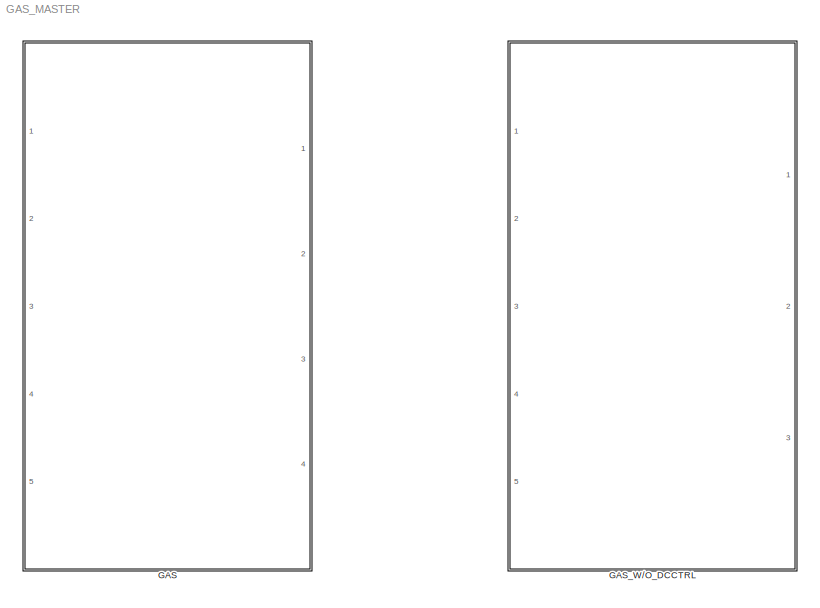
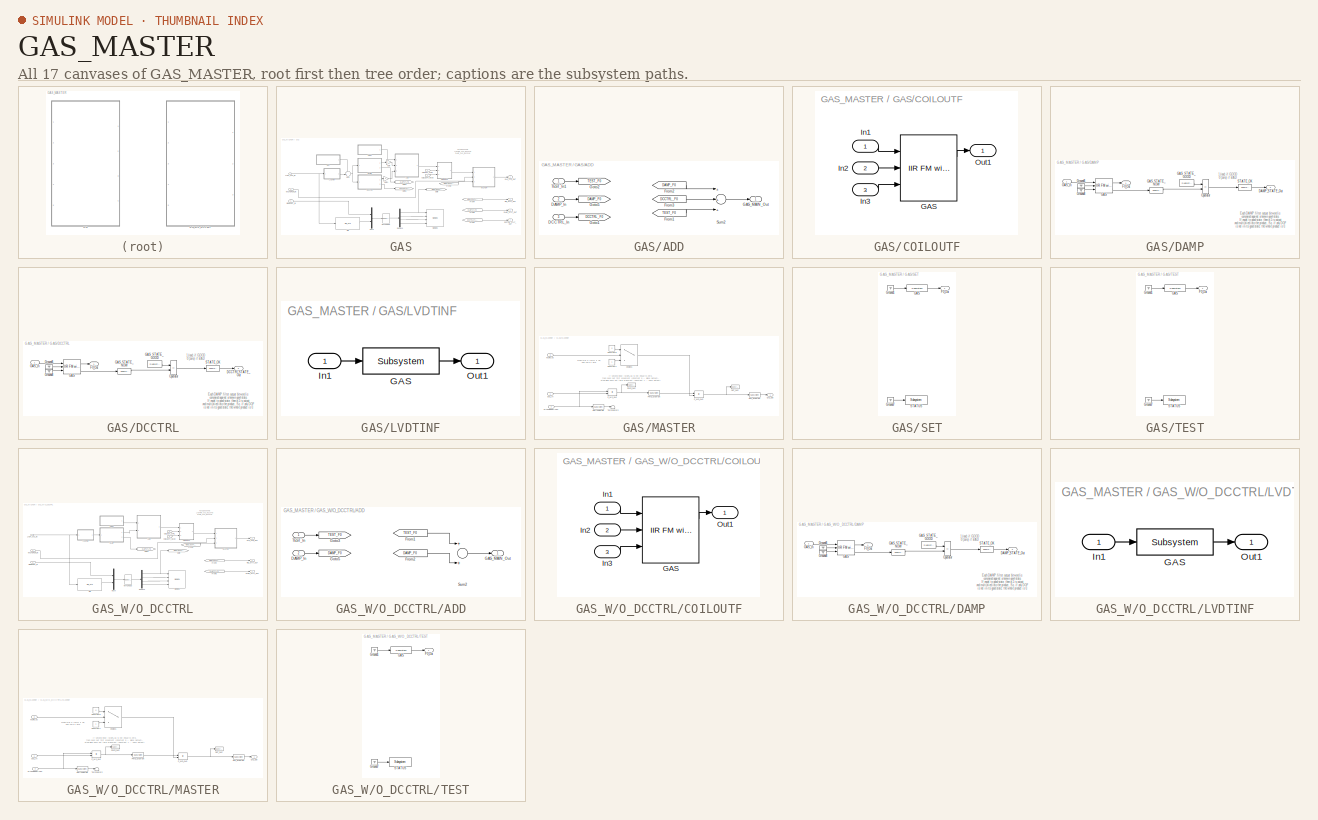
[diagram: thumbnail index - all 17 canvases of the model, root first then tree order]
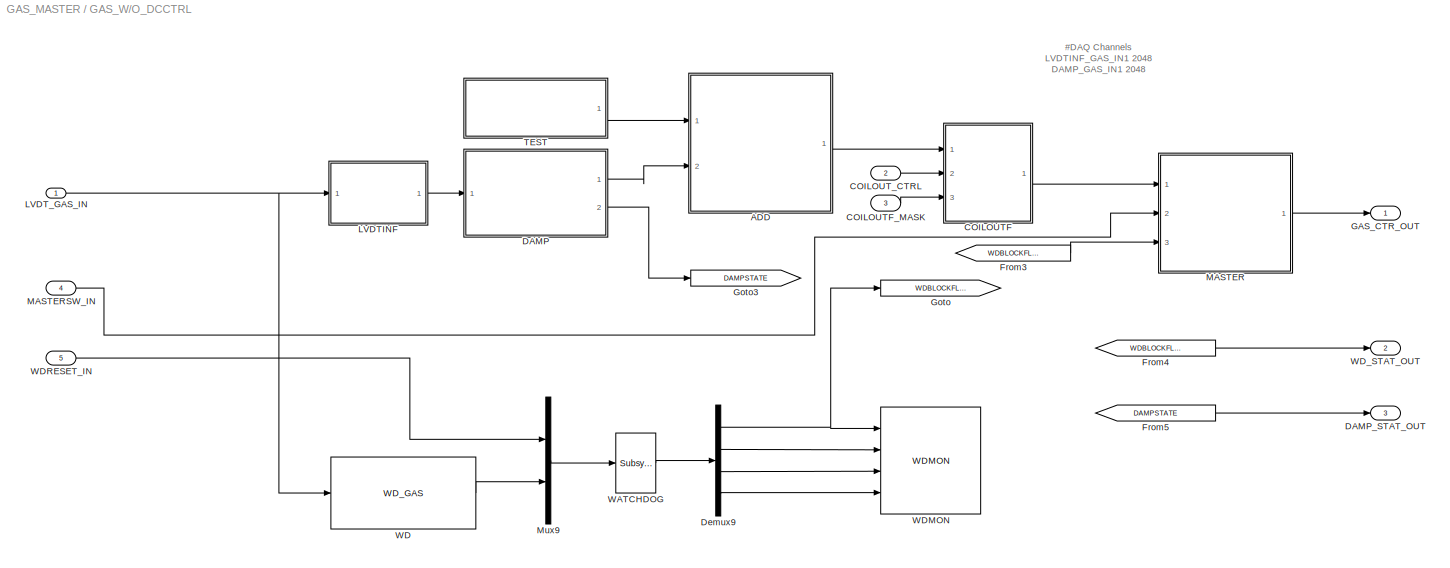
MODEL GAS_MASTER
KIND library
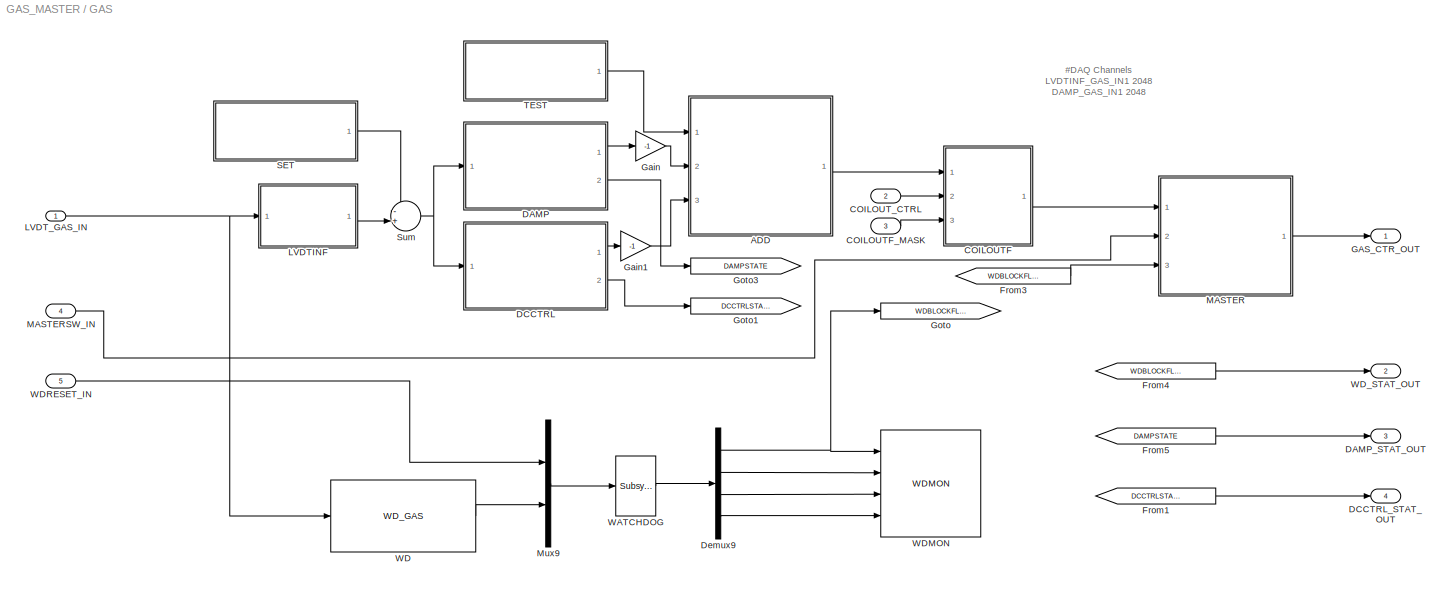
BLOCK [SubSystem] GAS
  Ports = [5, 4]
  RequestExecContextInheritance = off
  SID = 145
  Variant = off
BLOCK [SubSystem] GAS/ADD
  Ports = [3, 1]
  RequestExecContextInheritance = off
  SID = 42
  Variant = off
BLOCK [Inport] GAS/ADD/DAMP_In
  IconDisplay = Port number
  Port = 2
  SID = 45
BLOCK [Inport] GAS/ADD/DCCTRL_In
  IconDisplay = Port number
  Port = 3
  SID = 159
BLOCK [From] GAS/ADD/From1
  CloseFcn = tagdialog Close
  GotoTag = TEST_F0
  SID = 185
BLOCK [From] GAS/ADD/From2
  CloseFcn = tagdialog Close
  GotoTag = DAMP_F0
  SID = 47
BLOCK [From] GAS/ADD/From3
  CloseFcn = tagdialog Close
  GotoTag = DCCTRL_F0
  SID = 160
BLOCK [Outport] GAS/ADD/GAS_MAIN_Out
  IconDisplay = Port number
  SID = 51
BLOCK [Goto] GAS/ADD/Goto1
  GotoTag = DCCTRL_F0
  SID = 161
BLOCK [Goto] GAS/ADD/Goto2
  GotoTag = TEST_F0
  SID = 184
BLOCK [Goto] GAS/ADD/Goto5
  GotoTag = DAMP_F0
  SID = 49
BLOCK [Sum] GAS/ADD/Sum2
  InputSameDT = off
  Inputs = +++
  OutDataTypeStr = Inherit: Inherit via internal rule
  Ports = [3, 1]
  SID = 50
  SaturateOnIntegerOverflow = off
BLOCK [Inport] GAS/ADD/TEST_In1
  IconDisplay = Port number
  SID = 183
BLOCK [SubSystem] GAS/COILOUTF
  Ports = [3, 1]
  RequestExecContextInheritance = off
  SID = 64
  Variant = off
BLOCK [Reference] GAS/COILOUTF/GAS  REF=cdsFiltCtrl/IIR FM with control
  AttributesFormatString = %<Tag>
  Description = cdsFiltCntrl is the standard IIR filter module (exactly the same as cdsFilt) but with added control data output 'Ctrl'. Filter module digital signal output appears on the first output, which is called 'Val'. 'Ctrl' output has a bit pattern encoding the state of filter's on/off switches (FM1 through FM10). The bit values are:\n                                                                        ...<+4621ch>  <repeated x5 — deduplicated; at blocks: GAS>
  Ports = [3, 2]
  SID = 63
  SourceBlock = cdsFiltCtrl/IIR FM with control
  SourceType = SubSystem
  Tag = cdsFiltCtrl
BLOCK [Inport] GAS/COILOUTF/In1
  IconDisplay = Port number
  SID = 65
BLOCK [Inport] GAS/COILOUTF/In2
  IconDisplay = Port number
  Port = 2
  SID = 66
BLOCK [Inport] GAS/COILOUTF/In3
  IconDisplay = Port number
  Port = 3
  SID = 67
BLOCK [Outport] GAS/COILOUTF/Out1
  IconDisplay = Port number
  SID = 68
BLOCK [Inport] GAS/COILOUTF_MASK
  IconDisplay = Port number
  Port = 3
  SID = 148
BLOCK [Inport] GAS/COILOUT_CTRL
  IconDisplay = Port number
  Port = 2
  SID = 147
BLOCK [SubSystem] GAS/DAMP
  Ports = [1, 2]
  RequestExecContextInheritance = off
  SID = 8
  Variant = off
BLOCK [Outport] GAS/DAMP/DAMP_STATE_Out
  IconDisplay = Port number
  Port = 2
  SID = 38
BLOCK [Outport] GAS/DAMP/F0_Out
  IconDisplay = Port number
  SID = 35
BLOCK [Reference] GAS/DAMP/GAS  REF=cdsFiltCtrl/IIR FM with control
  AttributesFormatString = %<Tag>
  Ports = [3, 2]
  SID = 16
  SourceBlock = cdsFiltCtrl/IIR FM with control
  SourceType = SubSystem
  Tag = cdsFiltCtrl
BLOCK [Inport] GAS/DAMP/GAS_In
  IconDisplay = Port number
  SID = 9
BLOCK [Reference] GAS/DAMP/GAS_STATE_GOOD  REF=cdsEpicsIn/Subsystem
  AttributesFormatString = %<Tag>
  Description = Purpose:                                                                              \nCreate an EPICS input channel connection to the FE realtime controls.                 \n                                                                                      \nOperation:                                                                            \nOutputs value from an EPICS ai record. Value is ...<+266ch>  <repeated x3 — deduplicated; at blocks: GAS_STATE_GOOD>
  Ports = [0, 1]
  SID = 17
  SourceBlock = cdsEpicsIn/Subsystem
  SourceType = SubSystem
  Tag = cdsEpicsIn
BLOCK [Reference] GAS/DAMP/GAS_STATE_NOW  REF=cdsEpicsOut/Subsystem
  AttributesFormatString = %<Tag>
  Description = Purpose:                                          \nOutput a FE signal to an EPICS channel.           \n                                                  \nOperation:                                        \nTakes input value and passes it to EPICS record.  \n                                                  \nUsage:                                            \nName the part with the desired EPICS...<+14ch>  <repeated x12 — deduplicated; at blocks: GAS_STATE_NOW, STATE_OK, OUT_GASMON, PWD_GASMON, SWITCHMON>
  Ports = [1, 1]
  SID = 18
  SourceBlock = cdsEpicsOut/Subsystem
  SourceType = SubSystem
  Tag = cdsEpicsOutput
BLOCK [Ground] GAS/DAMP/Ground6
  SID = 28
BLOCK [Ground] GAS/DAMP/Ground8
  SID = 29
BLOCK [RelationalOperator] GAS/DAMP/Operator
  InputSameDT = off
  Operator = ==
  OutDataTypeStr = boolean
  Ports = [2, 1]
  SID = 30
BLOCK [Reference] GAS/DAMP/STATE_OK  REF=cdsEpicsOut/Subsystem
  AttributesFormatString = %<Tag>
  Ports = [1, 1]
  SID = 34
  SourceBlock = cdsEpicsOut/Subsystem
  SourceType = SubSystem
  Tag = cdsEpicsOutput
BLOCK [Outport] GAS/DAMP_STAT_OUT
  IconDisplay = Port number
  Port = 3
  SID = 153
BLOCK [SubSystem] GAS/DCCTRL
  Ports = [1, 2]
  RequestExecContextInheritance = off
  SID = 163
  Variant = off
BLOCK [Outport] GAS/DCCTRL/DCCTRL_STATE_Out
  IconDisplay = Port number
  Port = 2
  SID = 173
BLOCK [Outport] GAS/DCCTRL/F0_Out
  IconDisplay = Port number
  SID = 172
BLOCK [Reference] GAS/DCCTRL/GAS  REF=cdsFiltCtrl/IIR FM with control
  AttributesFormatString = %<Tag>
  Ports = [3, 2]
  SID = 165
  SourceBlock = cdsFiltCtrl/IIR FM with control
  SourceType = SubSystem
  Tag = cdsFiltCtrl
BLOCK [Inport] GAS/DCCTRL/GAS_In
  IconDisplay = Port number
  SID = 164
BLOCK [Reference] GAS/DCCTRL/GAS_STATE_GOOD  REF=cdsEpicsIn/Subsystem
  AttributesFormatString = %<Tag>
  Ports = [0, 1]
  SID = 166
  SourceBlock = cdsEpicsIn/Subsystem
  SourceType = SubSystem
  Tag = cdsEpicsIn
BLOCK [Reference] GAS/DCCTRL/GAS_STATE_NOW  REF=cdsEpicsOut/Subsystem
  AttributesFormatString = %<Tag>
  Ports = [1, 1]
  SID = 167
  SourceBlock = cdsEpicsOut/Subsystem
  SourceType = SubSystem
  Tag = cdsEpicsOutput
BLOCK [Ground] GAS/DCCTRL/Ground6
  SID = 168
BLOCK [Ground] GAS/DCCTRL/Ground8
  SID = 169
BLOCK [RelationalOperator] GAS/DCCTRL/Operator
  InputSameDT = off
  Operator = ==
  OutDataTypeStr = boolean
  Ports = [2, 1]
  SID = 170
BLOCK [Reference] GAS/DCCTRL/STATE_OK  REF=cdsEpicsOut/Subsystem
  AttributesFormatString = %<Tag>
  Ports = [1, 1]
  SID = 171
  SourceBlock = cdsEpicsOut/Subsystem
  SourceType = SubSystem
  Tag = cdsEpicsOutput
BLOCK [Outport] GAS/DCCTRL_STAT_OUT
  IconDisplay = Port number
  Port = 4
  SID = 178
BLOCK [Demux] GAS/Demux9
  DisplayOption = bar
  Ports = [1, 4]
  SID = 108
BLOCK [From] GAS/From1
  CloseFcn = tagdialog Close
  GotoTag = DCCTRLSTATE
  SID = 177
BLOCK [From] GAS/From3
  CloseFcn = tagdialog Close
  GotoTag = WDBLOCKFLAG
  SID = 109
BLOCK [From] GAS/From4
  CloseFcn = tagdialog Close
  GotoTag = WDBLOCKFLAG
  SID = 118
BLOCK [From] GAS/From5
  CloseFcn = tagdialog Close
  GotoTag = DAMPSTATE
  SID = 119
BLOCK [Outport] GAS/GAS_CTR_OUT
  IconDisplay = Port number
  SID = 151
BLOCK [Gain] GAS/Gain
  Gain = -1
  OutDataTypeStr = Inherit: Inherit via internal rule
  ParamDataTypeStr = Inherit: Inherit via internal rule
  SID = 273
  SaturateOnIntegerOverflow = off
BLOCK [Gain] GAS/Gain1
  Gain = -1
  OutDataTypeStr = Inherit: Inherit via internal rule
  ParamDataTypeStr = Inherit: Inherit via internal rule
  SID = 274
  SaturateOnIntegerOverflow = off
BLOCK [Goto] GAS/Goto
  GotoTag = WDBLOCKFLAG
  SID = 110
BLOCK [Goto] GAS/Goto1
  GotoTag = DCCTRLSTATE
  SID = 176
BLOCK [Goto] GAS/Goto3
  GotoTag = DAMPSTATE
  SID = 122
BLOCK [SubSystem] GAS/LVDTINF
  Ports = [1, 1]
  RequestExecContextInheritance = off
  SID = 4
  Variant = off
BLOCK [Reference] GAS/LVDTINF/GAS  REF=cdsFilt/Subsystem
  AttributesFormatString = %<Tag>
  Description = Purpose:                                                                                                                                                                                                                                  \nStandard CDS IIR filter module.                                                                                                                                     ...<+1302ch>  <repeated x5 — deduplicated; at blocks: GAS>
  Ports = [1, 1]
  SID = 3
  SourceBlock = cdsFilt/Subsystem
  SourceType = SubSystem
  Tag = cdsFilt
BLOCK [Inport] GAS/LVDTINF/In1
  IconDisplay = Port number
  SID = 5
BLOCK [Outport] GAS/LVDTINF/Out1
  IconDisplay = Port number
  SID = 6
BLOCK [Inport] GAS/LVDT_GAS_IN
  IconDisplay = Port number
  SID = 146
BLOCK [SubSystem] GAS/MASTER
  Ports = [3, 1]
  RequestExecContextInheritance = off
  SID = 71
  Variant = off
BLOCK [Switch] GAS/MASTER/Choice1
  Criteria = u2 ~= 0
  InputSameDT = off
  SID = 77
  SaturateOnIntegerOverflow = off
  Threshold = 0.5
BLOCK [Constant] GAS/MASTER/Constant0
  SID = 78
  Value = 0
BLOCK [Constant] GAS/MASTER/Constant1
  SID = 79
BLOCK [Inport] GAS/MASTER/GAS_In
  IconDisplay = Port number
  SID = 72
BLOCK [Outport] GAS/MASTER/GAS_Out
  IconDisplay = Port number
  SID = 100
BLOCK [Inport] GAS/MASTER/MASTERSWITCH
  IconDisplay = Port number
  Port = 2
  SID = 75
BLOCK [Reference] GAS/MASTER/OUT_GAS  REF=cdsTP/Subsystem
  AttributesFormatString = %<Tag>
  Ports = [1]
  SID = 82
  SourceBlock = cdsTP/Subsystem
  SourceType = SubSystem
  Tag = Test Point
BLOCK [Reference] GAS/MASTER/OUT_GASMON  REF=cdsEpicsOut/Subsystem
  AttributesFormatString = %<Tag>
  Ports = [1, 1]
  SID = 83
  SourceBlock = cdsEpicsOut/Subsystem
  SourceType = SubSystem
  Tag = cdsEpicsOutput
BLOCK [Reference] GAS/MASTER/PWD_GAS  REF=cdsTP/Subsystem
  AttributesFormatString = %<Tag>
  Ports = [1]
  SID = 88
  SourceBlock = cdsTP/Subsystem
  SourceType = SubSystem
  Tag = Test Point
BLOCK [Reference] GAS/MASTER/PWD_GASMON  REF=cdsEpicsOut/Subsystem
  AttributesFormatString = %<Tag>
  Ports = [1, 1]
  SID = 89
  SourceBlock = cdsEpicsOut/Subsystem
  SourceType = SubSystem
  Tag = cdsEpicsOutput
BLOCK [Product] GAS/MASTER/P_MS_GAS
  InputSameDT = off
  OutDataTypeStr = Inherit: Inherit via internal rule
  Ports = [2, 1]
  SID = 93
  SaturateOnIntegerOverflow = off
BLOCK [Product] GAS/MASTER/P_WD_GAS
  InputSameDT = off
  OutDataTypeStr = Inherit: Inherit via internal rule
  Ports = [2, 1]
  SID = 96
  SaturateOnIntegerOverflow = off
BLOCK [Reference] GAS/MASTER/SWITCHMON  REF=cdsEpicsOut/Subsystem
  AttributesFormatString = %<Tag>
  Ports = [1, 1]
  SID = 98
  SourceBlock = cdsEpicsOut/Subsystem
  SourceType = SubSystem
  Tag = cdsEpicsOutput
BLOCK [Terminator] GAS/MASTER/Terminator2
  SID = 99
BLOCK [Inport] GAS/MASTER/WDFLAG
  IconDisplay = Port number
  Port = 3
  SID = 76
BLOCK [Inport] GAS/MASTERSW_IN
  IconDisplay = Port number
  Port = 4
  SID = 149
BLOCK [Mux] GAS/Mux9
  DisplayOption = bar
  Inputs = 2
  Ports = [2, 1]
  SID = 107
BLOCK [SubSystem] GAS/SET
  Ports = [0, 1]
  RequestExecContextInheritance = off
  SID = 43
  Variant = off
BLOCK [Outport] GAS/SET/F0_Out
  IconDisplay = Port number
  SID = 60
BLOCK [Reference] GAS/SET/GAS  REF=cdsFilt/Subsystem
  AttributesFormatString = %<Tag>
  Ports = [1, 1]
  SID = 53
  SourceBlock = cdsFilt/Subsystem
  SourceType = SubSystem
  Tag = cdsFilt
BLOCK [Ground] GAS/SET/Ground1
  SID = 55
BLOCK [Ground] GAS/SET/Ground7
  SID = 58
BLOCK [Reference] GAS/SET/STATUS  REF=cdsEpicsBinIn/Subsystem
  AttributesFormatString = %<Tag>
  Description = Purpose:                                                                            \nCreate an EPICS binary (0 or 1) input channel to the FE realtime controls.          \n                                                                                    \nOperation:                                                                          \nOutputs value from an EPICS ai record. Value is binary i...<+252ch>  <repeated x3 — deduplicated; at blocks: STATUS>
  Ports = [1, 1]
  SID = 59
  SourceBlock = cdsEpicsBinIn/Subsystem
  SourceType = SubSystem
  Tag = cdsEpicsBinIn
BLOCK [Sum] GAS/Sum
  IconShape = round
  InputSameDT = off
  Inputs = -+|
  OutDataTypeStr = Inherit: Inherit via internal rule
  Ports = [2, 1]
  SID = 181
  SaturateOnIntegerOverflow = off
BLOCK [SubSystem] GAS/TEST
  Ports = [0, 1]
  RequestExecContextInheritance = off
  SID = 186
  Variant = off
BLOCK [Outport] GAS/TEST/F0_Out
  IconDisplay = Port number
  SID = 191
BLOCK [Reference] GAS/TEST/GAS  REF=cdsFilt/Subsystem
  AttributesFormatString = %<Tag>
  Ports = [1, 1]
  SID = 187
  SourceBlock = cdsFilt/Subsystem
  SourceType = SubSystem
  Tag = cdsFilt
BLOCK [Ground] GAS/TEST/Ground1
  SID = 188
BLOCK [Ground] GAS/TEST/Ground7
  SID = 189
BLOCK [Reference] GAS/TEST/STATUS  REF=cdsEpicsBinIn/Subsystem
  AttributesFormatString = %<Tag>
  Ports = [1, 1]
  SID = 190
  SourceBlock = cdsEpicsBinIn/Subsystem
  SourceType = SubSystem
  Tag = cdsEpicsBinIn
BLOCK [Reference] GAS/WATCHDOG  REF=cdsFunctionCall/Subsystem
  AttributesFormatString = %<Tag>\\n%<Description>
  Description = inline OSEMWATCHDOG <path>
  Ports = [1, 1]
  SID = 111
  SourceBlock = cdsFunctionCall/Subsystem
  SourceType = SubSystem
  Tag = cdsFunctionCall
BLOCK [Reference] GAS/WD  REF=VIS_LIB/WD_GAS
  Ports = [1, 1]
  SID = 156
  SourceBlock = VIS_LIB/WD_GAS
  SourceType = SubSystem
BLOCK [Reference] GAS/WDMON  REF=VIS_LIB/WDMON
  Ports = [4]
  SID = 112
  SourceBlock = VIS_LIB/WDMON
  SourceType = SubSystem
BLOCK [Inport] GAS/WDRESET_IN
  IconDisplay = Port number
  Port = 5
  SID = 150
BLOCK [Outport] GAS/WD_STAT_OUT
  IconDisplay = Port number
  Port = 2
  SID = 152
BLOCK [SubSystem] GAS_W//O_DCCTRL
  Ports = [5, 3]
  RequestExecContextInheritance = off
  SID = 193
  Variant = off
BLOCK [SubSystem] GAS_W//O_DCCTRL/ADD
  Ports = [2, 1]
  RequestExecContextInheritance = off
  SID = 199
  Variant = off
BLOCK [Inport] GAS_W//O_DCCTRL/ADD/DAMP_In
  IconDisplay = Port number
  Port = 2
  SID = 201
BLOCK [From] GAS_W//O_DCCTRL/ADD/From1
  CloseFcn = tagdialog Close
  GotoTag = TEST_F0
  SID = 203
BLOCK [From] GAS_W//O_DCCTRL/ADD/From2
  CloseFcn = tagdialog Close
  GotoTag = DAMP_F0
  SID = 204
BLOCK [Outport] GAS_W//O_DCCTRL/ADD/GAS_MAIN_Out
  IconDisplay = Port number
  SID = 210
BLOCK [Goto] GAS_W//O_DCCTRL/ADD/Goto3
  GotoTag = TEST_F0
  SID = 207
BLOCK [Goto] GAS_W//O_DCCTRL/ADD/Goto5
  GotoTag = DAMP_F0
  SID = 208
BLOCK [Sum] GAS_W//O_DCCTRL/ADD/Sum2
  InputSameDT = off
  OutDataTypeStr = Inherit: Inherit via internal rule
  Ports = [2, 1]
  SID = 209
  SaturateOnIntegerOverflow = off
BLOCK [Inport] GAS_W//O_DCCTRL/ADD/TEST_In
  IconDisplay = Port number
  SID = 200
BLOCK [SubSystem] GAS_W//O_DCCTRL/COILOUTF
  Ports = [3, 1]
  RequestExecContextInheritance = off
  SID = 212
  Variant = off
BLOCK [Reference] GAS_W//O_DCCTRL/COILOUTF/GAS  REF=cdsFiltCtrl/IIR FM with control
  AttributesFormatString = %<Tag>
  Ports = [3, 2]
  SID = 216
  SourceBlock = cdsFiltCtrl/IIR FM with control
  SourceType = SubSystem
  Tag = cdsFiltCtrl
BLOCK [Inport] GAS_W//O_DCCTRL/COILOUTF/In1
  IconDisplay = Port number
  SID = 213
BLOCK [Inport] GAS_W//O_DCCTRL/COILOUTF/In2
  IconDisplay = Port number
  Port = 2
  SID = 214
BLOCK [Inport] GAS_W//O_DCCTRL/COILOUTF/In3
  IconDisplay = Port number
  Port = 3
  SID = 215
BLOCK [Outport] GAS_W//O_DCCTRL/COILOUTF/Out1
  IconDisplay = Port number
  SID = 217
BLOCK [Inport] GAS_W//O_DCCTRL/COILOUTF_MASK
  IconDisplay = Port number
  Port = 3
  SID = 196
BLOCK [Inport] GAS_W//O_DCCTRL/COILOUT_CTRL
  IconDisplay = Port number
  Port = 2
  SID = 195
BLOCK [SubSystem] GAS_W//O_DCCTRL/DAMP
  Ports = [1, 2]
  RequestExecContextInheritance = off
  SID = 218
  Variant = off
BLOCK [Outport] GAS_W//O_DCCTRL/DAMP/DAMP_STATE_Out
  IconDisplay = Port number
  Port = 2
  SID = 228
BLOCK [Outport] GAS_W//O_DCCTRL/DAMP/F0_Out
  IconDisplay = Port number
  SID = 227
BLOCK [Reference] GAS_W//O_DCCTRL/DAMP/GAS  REF=cdsFiltCtrl/IIR FM with control
  AttributesFormatString = %<Tag>
  Ports = [3, 2]
  SID = 220
  SourceBlock = cdsFiltCtrl/IIR FM with control
  SourceType = SubSystem
  Tag = cdsFiltCtrl
BLOCK [Inport] GAS_W//O_DCCTRL/DAMP/GAS_In
  IconDisplay = Port number
  SID = 219
BLOCK [Reference] GAS_W//O_DCCTRL/DAMP/GAS_STATE_GOOD  REF=cdsEpicsIn/Subsystem
  AttributesFormatString = %<Tag>
  Ports = [0, 1]
  SID = 221
  SourceBlock = cdsEpicsIn/Subsystem
  SourceType = SubSystem
  Tag = cdsEpicsIn
BLOCK [Reference] GAS_W//O_DCCTRL/DAMP/GAS_STATE_NOW  REF=cdsEpicsOut/Subsystem
  AttributesFormatString = %<Tag>
  Ports = [1, 1]
  SID = 222
  SourceBlock = cdsEpicsOut/Subsystem
  SourceType = SubSystem
  Tag = cdsEpicsOutput
BLOCK [Ground] GAS_W//O_DCCTRL/DAMP/Ground6
  SID = 223
BLOCK [Ground] GAS_W//O_DCCTRL/DAMP/Ground8
  SID = 224
BLOCK [RelationalOperator] GAS_W//O_DCCTRL/DAMP/Operator
  InputSameDT = off
  Operator = ==
  OutDataTypeStr = boolean
  Ports = [2, 1]
  SID = 225
BLOCK [Reference] GAS_W//O_DCCTRL/DAMP/STATE_OK  REF=cdsEpicsOut/Subsystem
  AttributesFormatString = %<Tag>
  Ports = [1, 1]
  SID = 226
  SourceBlock = cdsEpicsOut/Subsystem
  SourceType = SubSystem
  Tag = cdsEpicsOutput
BLOCK [Outport] GAS_W//O_DCCTRL/DAMP_STAT_OUT
  IconDisplay = Port number
  Port = 3
  SID = 271
BLOCK [Demux] GAS_W//O_DCCTRL/Demux9
  DisplayOption = bar
  Ports = [1, 4]
  SID = 231
BLOCK [From] GAS_W//O_DCCTRL/From3
  CloseFcn = tagdialog Close
  GotoTag = WDBLOCKFLAG
  SID = 232
BLOCK [From] GAS_W//O_DCCTRL/From4
  CloseFcn = tagdialog Close
  GotoTag = WDBLOCKFLAG
  SID = 233
BLOCK [From] GAS_W//O_DCCTRL/From5
  CloseFcn = tagdialog Close
  GotoTag = DAMPSTATE
  SID = 234
BLOCK [Outport] GAS_W//O_DCCTRL/GAS_CTR_OUT
  IconDisplay = Port number
  SID = 269
BLOCK [Goto] GAS_W//O_DCCTRL/Goto
  GotoTag = WDBLOCKFLAG
  SID = 235
BLOCK [Goto] GAS_W//O_DCCTRL/Goto3
  GotoTag = DAMPSTATE
  SID = 236
BLOCK [SubSystem] GAS_W//O_DCCTRL/LVDTINF
  Ports = [1, 1]
  RequestExecContextInheritance = off
  SID = 237
  Variant = off
BLOCK [Reference] GAS_W//O_DCCTRL/LVDTINF/GAS  REF=cdsFilt/Subsystem
  AttributesFormatString = %<Tag>
  Ports = [1, 1]
  SID = 239
  SourceBlock = cdsFilt/Subsystem
  SourceType = SubSystem
  Tag = cdsFilt
BLOCK [Inport] GAS_W//O_DCCTRL/LVDTINF/In1
  IconDisplay = Port number
  SID = 238
BLOCK [Outport] GAS_W//O_DCCTRL/LVDTINF/Out1
  IconDisplay = Port number
  SID = 240
BLOCK [Inport] GAS_W//O_DCCTRL/LVDT_GAS_IN
  IconDisplay = Port number
  SID = 194
BLOCK [SubSystem] GAS_W//O_DCCTRL/MASTER
  Ports = [3, 1]
  RequestExecContextInheritance = off
  SID = 241
  Variant = off
BLOCK [Switch] GAS_W//O_DCCTRL/MASTER/Choice1
  Criteria = u2 ~= 0
  InputSameDT = off
  SID = 245
  SaturateOnIntegerOverflow = off
  Threshold = 0.5
BLOCK [Constant] GAS_W//O_DCCTRL/MASTER/Constant0
  SID = 246
  Value = 0
BLOCK [Constant] GAS_W//O_DCCTRL/MASTER/Constant1
  SID = 247
BLOCK [Inport] GAS_W//O_DCCTRL/MASTER/GAS_In
  IconDisplay = Port number
  SID = 242
BLOCK [Outport] GAS_W//O_DCCTRL/MASTER/GAS_Out
  IconDisplay = Port number
  SID = 256
BLOCK [Inport] GAS_W//O_DCCTRL/MASTER/MASTERSWITCH
  IconDisplay = Port number
  Port = 2
  SID = 243
BLOCK [Reference] GAS_W//O_DCCTRL/MASTER/OUT_GAS  REF=cdsTP/Subsystem
  AttributesFormatString = %<Tag>
  Ports = [1]
  SID = 248
  SourceBlock = cdsTP/Subsystem
  SourceType = SubSystem
  Tag = Test Point
BLOCK [Reference] GAS_W//O_DCCTRL/MASTER/OUT_GASMON  REF=cdsEpicsOut/Subsystem
  AttributesFormatString = %<Tag>
  Ports = [1, 1]
  SID = 249
  SourceBlock = cdsEpicsOut/Subsystem
  SourceType = SubSystem
  Tag = cdsEpicsOutput
BLOCK [Reference] GAS_W//O_DCCTRL/MASTER/PWD_GAS  REF=cdsTP/Subsystem
  AttributesFormatString = %<Tag>
  Ports = [1]
  SID = 250
  SourceBlock = cdsTP/Subsystem
  SourceType = SubSystem
  Tag = Test Point
BLOCK [Reference] GAS_W//O_DCCTRL/MASTER/PWD_GASMON  REF=cdsEpicsOut/Subsystem
  AttributesFormatString = %<Tag>
  Ports = [1, 1]
  SID = 251
  SourceBlock = cdsEpicsOut/Subsystem
  SourceType = SubSystem
  Tag = cdsEpicsOutput
BLOCK [Product] GAS_W//O_DCCTRL/MASTER/P_MS_GAS
  InputSameDT = off
  OutDataTypeStr = Inherit: Inherit via internal rule
  Ports = [2, 1]
  SID = 252
  SaturateOnIntegerOverflow = off
BLOCK [Product] GAS_W//O_DCCTRL/MASTER/P_WD_GAS
  InputSameDT = off
  OutDataTypeStr = Inherit: Inherit via internal rule
  Ports = [2, 1]
  SID = 253
  SaturateOnIntegerOverflow = off
BLOCK [Reference] GAS_W//O_DCCTRL/MASTER/SWITCHMON  REF=cdsEpicsOut/Subsystem
  AttributesFormatString = %<Tag>
  Ports = [1, 1]
  SID = 254
  SourceBlock = cdsEpicsOut/Subsystem
  SourceType = SubSystem
  Tag = cdsEpicsOutput
BLOCK [Terminator] GAS_W//O_DCCTRL/MASTER/Terminator2
  SID = 255
BLOCK [Inport] GAS_W//O_DCCTRL/MASTER/WDFLAG
  IconDisplay = Port number
  Port = 3
  SID = 244
BLOCK [Inport] GAS_W//O_DCCTRL/MASTERSW_IN
  IconDisplay = Port number
  Port = 4
  SID = 197
BLOCK [Mux] GAS_W//O_DCCTRL/Mux9
  DisplayOption = bar
  Inputs = 2
  Ports = [2, 1]
  SID = 259
BLOCK [SubSystem] GAS_W//O_DCCTRL/TEST
  Ports = [0, 1]
  RequestExecContextInheritance = off
  SID = 260
  Variant = off
BLOCK [Outport] GAS_W//O_DCCTRL/TEST/F0_Out
  IconDisplay = Port number
  SID = 265
BLOCK [Reference] GAS_W//O_DCCTRL/TEST/GAS  REF=cdsFilt/Subsystem
  AttributesFormatString = %<Tag>
  Ports = [1, 1]
  SID = 261
  SourceBlock = cdsFilt/Subsystem
  SourceType = SubSystem
  Tag = cdsFilt
BLOCK [Ground] GAS_W//O_DCCTRL/TEST/Ground1
  SID = 262
BLOCK [Ground] GAS_W//O_DCCTRL/TEST/Ground7
  SID = 263
BLOCK [Reference] GAS_W//O_DCCTRL/TEST/STATUS  REF=cdsEpicsBinIn/Subsystem
  AttributesFormatString = %<Tag>
  Ports = [1, 1]
  SID = 264
  SourceBlock = cdsEpicsBinIn/Subsystem
  SourceType = SubSystem
  Tag = cdsEpicsBinIn
BLOCK [Reference] GAS_W//O_DCCTRL/WATCHDOG  REF=cdsFunctionCall/Subsystem
  AttributesFormatString = %<Tag>\\n%<Description>
  Description = inline OSEMWATCHDOG <path>
  Ports = [1, 1]
  SID = 266
  SourceBlock = cdsFunctionCall/Subsystem
  SourceType = SubSystem
  Tag = cdsFunctionCall
BLOCK [Reference] GAS_W//O_DCCTRL/WD  REF=VIS_LIB/WD_GAS
  Ports = [1, 1]
  SID = 267
  SourceBlock = VIS_LIB/WD_GAS
  SourceType = SubSystem
BLOCK [Reference] GAS_W//O_DCCTRL/WDMON  REF=VIS_LIB/WDMON
  Ports = [4]
  SID = 268
  SourceBlock = VIS_LIB/WDMON
  SourceType = SubSystem
BLOCK [Inport] GAS_W//O_DCCTRL/WDRESET_IN
  IconDisplay = Port number
  Port = 5
  SID = 198
BLOCK [Outport] GAS_W//O_DCCTRL/WD_STAT_OUT
  IconDisplay = Port number
  Port = 2
  SID = 270
ANNOTATION GAS: #DAQ Channels\nLVDTINF_GAS_IN1 2048\nDAMP_GAS_IN1 2048
ANNOTATION GAS/DAMP: 1 (one) if GOOD\n0 (zero) if BAD
ANNOTATION GAS/DAMP: Each DAMP filter output bitword is \ncompared against a known good state.\nIf equal to good state, then a 1 is output \nand multiplied into the product. So, if any DOF\nis not in its good state, the whole product is 0.
ANNOTATION GAS/DCCTRL: 1 (one) if GOOD\n0 (zero) if BAD
ANNOTATION GAS/DCCTRL: Each DAMP filter output bitword is \ncompared against a known good state.\nIf equal to good state, then a 1 is output \nand multiplied into the product. So, if any DOF\nis not in its good state, the whole product is 0.
ANNOTATION GAS/MASTER: If second input (WDFLAG) is not equal to zero, \nthen pass out first argument (Constant 0 -- Block Output), \notherwise pass out third argument (Constant 1 -- Pass Output)
ANNOTATION GAS/MASTER: WDFLAG is 0 (zero) if OK,\nNon-zero if BAD
ANNOTATION GAS_W//O_DCCTRL: #DAQ Channels\nLVDTINF_GAS_IN1 2048\nDAMP_GAS_IN1 2048
ANNOTATION GAS_W//O_DCCTRL/DAMP: 1 (one) if GOOD\n0 (zero) if BAD
ANNOTATION GAS_W//O_DCCTRL/DAMP: Each DAMP filter output bitword is \ncompared against a known good state.\nIf equal to good state, then a 1 is output \nand multiplied into the product. So, if any DOF\nis not in its good state, the whole product is 0.
ANNOTATION GAS_W//O_DCCTRL/MASTER: If second input (WDFLAG) is not equal to zero, \nthen pass out first argument (Constant 0 -- Block Output), \notherwise pass out third argument (Constant 1 -- Pass Output)
ANNOTATION GAS_W//O_DCCTRL/MASTER: WDFLAG is 0 (zero) if OK,\nNon-zero if BAD
LINE GAS/ADD/DAMP_In:1 -> GAS/ADD/Goto5:1
LINE GAS/ADD/DCCTRL_In:1 -> GAS/ADD/Goto1:1
LINE GAS/ADD/From1:1 -> GAS/ADD/Sum2:3
LINE GAS/ADD/From2:1 -> GAS/ADD/Sum2:1
LINE GAS/ADD/From3:1 -> GAS/ADD/Sum2:2
LINE GAS/ADD/Sum2:1 -> GAS/ADD/GAS_MAIN_Out:1
LINE GAS/ADD/TEST_In1:1 -> GAS/ADD/Goto2:1
LINE GAS/ADD:1 -> GAS/COILOUTF:1
LINE GAS/COILOUTF/GAS:1 -> GAS/COILOUTF/Out1:1
LINE GAS/COILOUTF/In1:1 -> GAS/COILOUTF/GAS:1
LINE GAS/COILOUTF/In2:1 -> GAS/COILOUTF/GAS:2
LINE GAS/COILOUTF/In3:1 -> GAS/COILOUTF/GAS:3
LINE GAS/COILOUTF:1 -> GAS/MASTER:1
LINE GAS/COILOUTF_MASK:1 -> GAS/COILOUTF:3
LINE GAS/COILOUT_CTRL:1 -> GAS/COILOUTF:2
LINE GAS/DAMP/GAS:1 -> GAS/DAMP/F0_Out:1
LINE GAS/DAMP/GAS:2 -> GAS/DAMP/GAS_STATE_NOW:1
LINE GAS/DAMP/GAS_In:1 -> GAS/DAMP/GAS:1
LINE GAS/DAMP/GAS_STATE_GOOD:1 -> GAS/DAMP/Operator:1
LINE GAS/DAMP/GAS_STATE_NOW:1 -> GAS/DAMP/Operator:2
LINE GAS/DAMP/Ground6:1 -> GAS/DAMP/GAS:2
LINE GAS/DAMP/Ground8:1 -> GAS/DAMP/GAS:3
LINE GAS/DAMP/Operator:1 -> GAS/DAMP/STATE_OK:1
LINE GAS/DAMP/STATE_OK:1 -> GAS/DAMP/DAMP_STATE_Out:1
LINE GAS/DAMP:1 -> GAS/Gain:1
LINE GAS/DAMP:2 -> GAS/Goto3:1
LINE GAS/DCCTRL/GAS:1 -> GAS/DCCTRL/F0_Out:1
LINE GAS/DCCTRL/GAS:2 -> GAS/DCCTRL/GAS_STATE_NOW:1
LINE GAS/DCCTRL/GAS_In:1 -> GAS/DCCTRL/GAS:1
LINE GAS/DCCTRL/GAS_STATE_GOOD:1 -> GAS/DCCTRL/Operator:1
LINE GAS/DCCTRL/GAS_STATE_NOW:1 -> GAS/DCCTRL/Operator:2
LINE GAS/DCCTRL/Ground6:1 -> GAS/DCCTRL/GAS:2
LINE GAS/DCCTRL/Ground8:1 -> GAS/DCCTRL/GAS:3
LINE GAS/DCCTRL/Operator:1 -> GAS/DCCTRL/STATE_OK:1
LINE GAS/DCCTRL/STATE_OK:1 -> GAS/DCCTRL/DCCTRL_STATE_Out:1
LINE GAS/DCCTRL:1 -> GAS/Gain1:1
LINE GAS/DCCTRL:2 -> GAS/Goto1:1
NET GAS/Demux9:1 -> GAS/Goto:1, GAS/WDMON:1
LINE GAS/Demux9:2 -> GAS/WDMON:2
LINE GAS/Demux9:3 -> GAS/WDMON:3
LINE GAS/Demux9:4 -> GAS/WDMON:4
LINE GAS/From1:1 -> GAS/DCCTRL_STAT_OUT:1
LINE GAS/From3:1 -> GAS/MASTER:3
LINE GAS/From4:1 -> GAS/WD_STAT_OUT:1
LINE GAS/From5:1 -> GAS/DAMP_STAT_OUT:1
LINE GAS/Gain1:1 -> GAS/ADD:3
LINE GAS/Gain:1 -> GAS/ADD:2
LINE GAS/LVDTINF/GAS:1 -> GAS/LVDTINF/Out1:1
LINE GAS/LVDTINF/In1:1 -> GAS/LVDTINF/GAS:1
LINE GAS/LVDTINF:1 -> GAS/Sum:2
NET GAS/LVDT_GAS_IN:1 -> GAS/LVDTINF:1, GAS/WD:1
LINE GAS/MASTER/Choice1:1 -> GAS/MASTER/P_WD_GAS:2
LINE GAS/MASTER/Constant0:1 -> GAS/MASTER/Choice1:1
LINE GAS/MASTER/Constant1:1 -> GAS/MASTER/Choice1:3
LINE GAS/MASTER/GAS_In:1 -> GAS/MASTER/P_MS_GAS:2
NET GAS/MASTER/MASTERSWITCH:1 -> GAS/MASTER/P_MS_GAS:1, GAS/MASTER/SWITCHMON:1
LINE GAS/MASTER/OUT_GASMON:1 -> GAS/MASTER/GAS_Out:1
LINE GAS/MASTER/PWD_GASMON:1 -> GAS/MASTER/P_WD_GAS:1
NET GAS/MASTER/P_MS_GAS:1 -> GAS/MASTER/PWD_GAS:1, GAS/MASTER/PWD_GASMON:1
NET GAS/MASTER/P_WD_GAS:1 -> GAS/MASTER/OUT_GAS:1, GAS/MASTER/OUT_GASMON:1
LINE GAS/MASTER/SWITCHMON:1 -> GAS/MASTER/Terminator2:1
LINE GAS/MASTER/WDFLAG:1 -> GAS/MASTER/Choice1:2
LINE GAS/MASTER:1 -> GAS/GAS_CTR_OUT:1
LINE GAS/MASTERSW_IN:1 -> GAS/MASTER:2
LINE GAS/Mux9:1 -> GAS/WATCHDOG:1
LINE GAS/SET/GAS:1 -> GAS/SET/F0_Out:1
LINE GAS/SET/Ground1:1 -> GAS/SET/GAS:1
LINE GAS/SET/Ground7:1 -> GAS/SET/STATUS:1
LINE GAS/SET:1 -> GAS/Sum:1
NET GAS/Sum:1 -> GAS/DAMP:1, GAS/DCCTRL:1
LINE GAS/TEST/GAS:1 -> GAS/TEST/F0_Out:1
LINE GAS/TEST/Ground1:1 -> GAS/TEST/GAS:1
LINE GAS/TEST/Ground7:1 -> GAS/TEST/STATUS:1
LINE GAS/TEST:1 -> GAS/ADD:1
LINE GAS/WATCHDOG:1 -> GAS/Demux9:1
LINE GAS/WD:1 -> GAS/Mux9:2
LINE GAS/WDRESET_IN:1 -> GAS/Mux9:1
LINE GAS_W//O_DCCTRL/ADD/DAMP_In:1 -> GAS_W//O_DCCTRL/ADD/Goto5:1
LINE GAS_W//O_DCCTRL/ADD/From1:1 -> GAS_W//O_DCCTRL/ADD/Sum2:1
LINE GAS_W//O_DCCTRL/ADD/From2:1 -> GAS_W//O_DCCTRL/ADD/Sum2:2
LINE GAS_W//O_DCCTRL/ADD/Sum2:1 -> GAS_W//O_DCCTRL/ADD/GAS_MAIN_Out:1
LINE GAS_W//O_DCCTRL/ADD/TEST_In:1 -> GAS_W//O_DCCTRL/ADD/Goto3:1
LINE GAS_W//O_DCCTRL/ADD:1 -> GAS_W//O_DCCTRL/COILOUTF:1
LINE GAS_W//O_DCCTRL/COILOUTF/GAS:1 -> GAS_W//O_DCCTRL/COILOUTF/Out1:1
LINE GAS_W//O_DCCTRL/COILOUTF/In1:1 -> GAS_W//O_DCCTRL/COILOUTF/GAS:1
LINE GAS_W//O_DCCTRL/COILOUTF/In2:1 -> GAS_W//O_DCCTRL/COILOUTF/GAS:2
LINE GAS_W//O_DCCTRL/COILOUTF/In3:1 -> GAS_W//O_DCCTRL/COILOUTF/GAS:3
LINE GAS_W//O_DCCTRL/COILOUTF:1 -> GAS_W//O_DCCTRL/MASTER:1
LINE GAS_W//O_DCCTRL/COILOUTF_MASK:1 -> GAS_W//O_DCCTRL/COILOUTF:3
LINE GAS_W//O_DCCTRL/COILOUT_CTRL:1 -> GAS_W//O_DCCTRL/COILOUTF:2
LINE GAS_W//O_DCCTRL/DAMP/GAS:1 -> GAS_W//O_DCCTRL/DAMP/F0_Out:1
LINE GAS_W//O_DCCTRL/DAMP/GAS:2 -> GAS_W//O_DCCTRL/DAMP/GAS_STATE_NOW:1
LINE GAS_W//O_DCCTRL/DAMP/GAS_In:1 -> GAS_W//O_DCCTRL/DAMP/GAS:1
LINE GAS_W//O_DCCTRL/DAMP/GAS_STATE_GOOD:1 -> GAS_W//O_DCCTRL/DAMP/Operator:1
LINE GAS_W//O_DCCTRL/DAMP/GAS_STATE_NOW:1 -> GAS_W//O_DCCTRL/DAMP/Operator:2
LINE GAS_W//O_DCCTRL/DAMP/Ground6:1 -> GAS_W//O_DCCTRL/DAMP/GAS:2
LINE GAS_W//O_DCCTRL/DAMP/Ground8:1 -> GAS_W//O_DCCTRL/DAMP/GAS:3
LINE GAS_W//O_DCCTRL/DAMP/Operator:1 -> GAS_W//O_DCCTRL/DAMP/STATE_OK:1
LINE GAS_W//O_DCCTRL/DAMP/STATE_OK:1 -> GAS_W//O_DCCTRL/DAMP/DAMP_STATE_Out:1
LINE GAS_W//O_DCCTRL/DAMP:1 -> GAS_W//O_DCCTRL/ADD:2
LINE GAS_W//O_DCCTRL/DAMP:2 -> GAS_W//O_DCCTRL/Goto3:1
NET GAS_W//O_DCCTRL/Demux9:1 -> GAS_W//O_DCCTRL/Goto:1, GAS_W//O_DCCTRL/WDMON:1
LINE GAS_W//O_DCCTRL/Demux9:2 -> GAS_W//O_DCCTRL/WDMON:2
LINE GAS_W//O_DCCTRL/Demux9:3 -> GAS_W//O_DCCTRL/WDMON:3
LINE GAS_W//O_DCCTRL/Demux9:4 -> GAS_W//O_DCCTRL/WDMON:4
LINE GAS_W//O_DCCTRL/From3:1 -> GAS_W//O_DCCTRL/MASTER:3
LINE GAS_W//O_DCCTRL/From4:1 -> GAS_W//O_DCCTRL/WD_STAT_OUT:1
LINE GAS_W//O_DCCTRL/From5:1 -> GAS_W//O_DCCTRL/DAMP_STAT_OUT:1
LINE GAS_W//O_DCCTRL/LVDTINF/GAS:1 -> GAS_W//O_DCCTRL/LVDTINF/Out1:1
LINE GAS_W//O_DCCTRL/LVDTINF/In1:1 -> GAS_W//O_DCCTRL/LVDTINF/GAS:1
LINE GAS_W//O_DCCTRL/LVDTINF:1 -> GAS_W//O_DCCTRL/DAMP:1
NET GAS_W//O_DCCTRL/LVDT_GAS_IN:1 -> GAS_W//O_DCCTRL/LVDTINF:1, GAS_W//O_DCCTRL/WD:1
LINE GAS_W//O_DCCTRL/MASTER/Choice1:1 -> GAS_W//O_DCCTRL/MASTER/P_WD_GAS:2
LINE GAS_W//O_DCCTRL/MASTER/Constant0:1 -> GAS_W//O_DCCTRL/MASTER/Choice1:1
LINE GAS_W//O_DCCTRL/MASTER/Constant1:1 -> GAS_W//O_DCCTRL/MASTER/Choice1:3
LINE GAS_W//O_DCCTRL/MASTER/GAS_In:1 -> GAS_W//O_DCCTRL/MASTER/P_MS_GAS:2
NET GAS_W//O_DCCTRL/MASTER/MASTERSWITCH:1 -> GAS_W//O_DCCTRL/MASTER/P_MS_GAS:1, GAS_W//O_DCCTRL/MASTER/SWITCHMON:1
LINE GAS_W//O_DCCTRL/MASTER/OUT_GASMON:1 -> GAS_W//O_DCCTRL/MASTER/GAS_Out:1
LINE GAS_W//O_DCCTRL/MASTER/PWD_GASMON:1 -> GAS_W//O_DCCTRL/MASTER/P_WD_GAS:1
NET GAS_W//O_DCCTRL/MASTER/P_MS_GAS:1 -> GAS_W//O_DCCTRL/MASTER/PWD_GAS:1, GAS_W//O_DCCTRL/MASTER/PWD_GASMON:1
NET GAS_W//O_DCCTRL/MASTER/P_WD_GAS:1 -> GAS_W//O_DCCTRL/MASTER/OUT_GAS:1, GAS_W//O_DCCTRL/MASTER/OUT_GASMON:1
LINE GAS_W//O_DCCTRL/MASTER/SWITCHMON:1 -> GAS_W//O_DCCTRL/MASTER/Terminator2:1
LINE GAS_W//O_DCCTRL/MASTER/WDFLAG:1 -> GAS_W//O_DCCTRL/MASTER/Choice1:2
LINE GAS_W//O_DCCTRL/MASTER:1 -> GAS_W//O_DCCTRL/GAS_CTR_OUT:1
LINE GAS_W//O_DCCTRL/MASTERSW_IN:1 -> GAS_W//O_DCCTRL/MASTER:2
LINE GAS_W//O_DCCTRL/Mux9:1 -> GAS_W//O_DCCTRL/WATCHDOG:1
LINE GAS_W//O_DCCTRL/TEST/GAS:1 -> GAS_W//O_DCCTRL/TEST/F0_Out:1
LINE GAS_W//O_DCCTRL/TEST/Ground1:1 -> GAS_W//O_DCCTRL/TEST/GAS:1
LINE GAS_W//O_DCCTRL/TEST/Ground7:1 -> GAS_W//O_DCCTRL/TEST/STATUS:1
LINE GAS_W//O_DCCTRL/TEST:1 -> GAS_W//O_DCCTRL/ADD:1
LINE GAS_W//O_DCCTRL/WATCHDOG:1 -> GAS_W//O_DCCTRL/Demux9:1
LINE GAS_W//O_DCCTRL/WD:1 -> GAS_W//O_DCCTRL/Mux9:2
LINE GAS_W//O_DCCTRL/WDRESET_IN:1 -> GAS_W//O_DCCTRL/Mux9:1
note: NET lines group one-source signal fan-out (src -> all destinations, sorted); 1:1 wires keep LINE
note: 2 file-system paths scrubbed to <path> (not preserved elsewhere — flat text is the only slx artifact)
